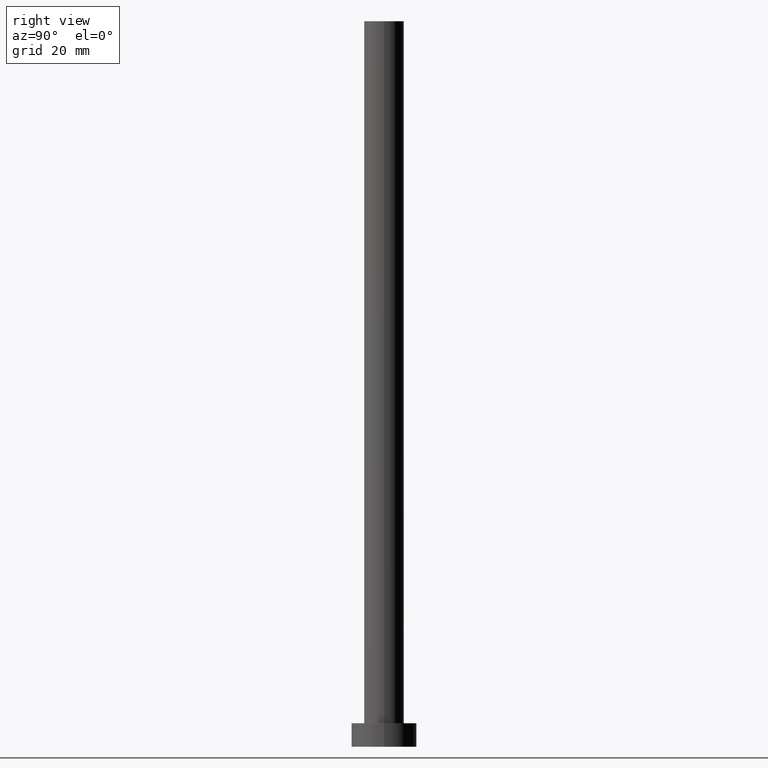
[diagram: clean part render]
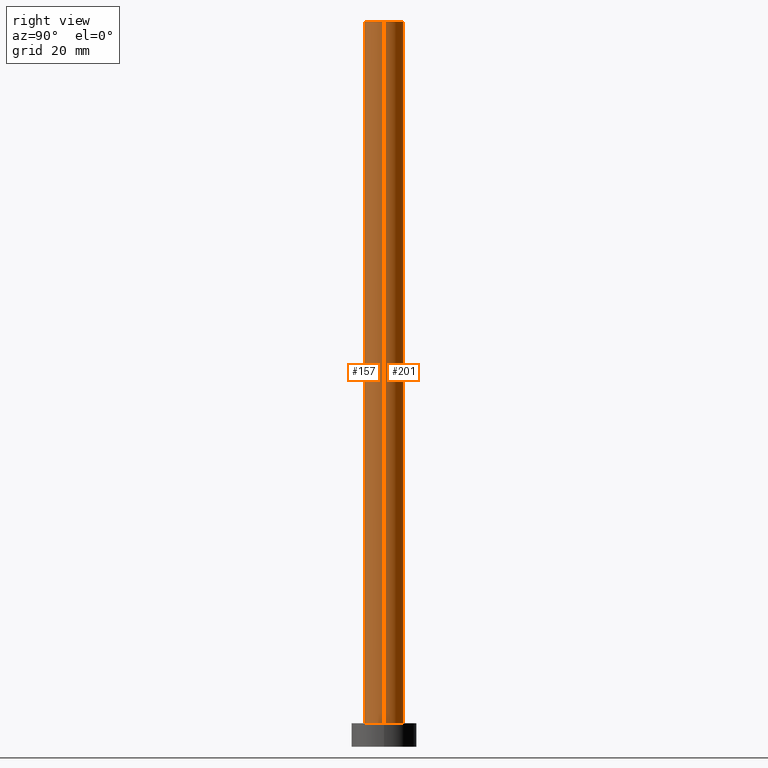
[diagram: same view with one multi-face feature highlighted, each face labeled with its STEP entity id]
A machine part, right view. The highlighted faces form ONE feature: a constant-radius fillet chain: 2 tangent blend faces with common blend radius 5.5 mm. The faces share edges in the B-rep.
Their STEP definitions:
[1] entity #201 (Cylinder):
#1 = DIRECTION ( 'NONE',  ( 0.000000000000000000, 0.000000000000000000, 1.000000000000000000 ) ) ;
#2 = DIRECTION ( 'NONE',  ( 1.000000000000000000, 0.000000000000000000, 0.000000000000000000 ) ) ;
#10 = DIRECTION ( 'NONE',  ( -0.000000000000000000, -0.000000000000000000, -1.000000000000000000 ) ) ;
#14 = ORIENTED_EDGE ( 'NONE', *, *, #218, .T. ) ;
#20 = EDGE_CURVE ( 'NONE', #165, #248, #246, .T. ) ;
#21 = CARTESIAN_POINT ( 'NONE',  ( -5.500000000000000000, 0.000000000000000000, 200.0000000000000000 ) ) ;
#35 = AXIS2_PLACEMENT_3D ( 'NONE', #120, #84, #2 ) ;
#41 = CIRCLE ( 'NONE', #211, 5.500000000000000000 ) ;
#42 = LINE ( 'NONE', #21, #215 ) ;
#44 = FACE_OUTER_BOUND ( 'NONE', #163, .T. ) ;
#61 = CARTESIAN_POINT ( 'NONE',  ( 5.500000000000000000, 6.735557395310442023E-16, 6.500000000000000000 ) ) ;
#66 = VERTEX_POINT ( 'NONE', #99 ) ;
#80 = DIRECTION ( 'NONE',  ( -0.000000000000000000, -0.000000000000000000, -1.000000000000000000 ) ) ;
#84 = DIRECTION ( 'NONE',  ( 0.000000000000000000, 0.000000000000000000, 1.000000000000000000 ) ) ;
#99 = CARTESIAN_POINT ( 'NONE',  ( -5.500000000000000000, 0.000000000000000000, 200.0000000000000000 ) ) ;
#120 = CARTESIAN_POINT ( 'NONE',  ( 0.000000000000000000, 0.000000000000000000, 200.0000000000000000 ) ) ;
#122 = CIRCLE ( 'NONE', #35, 5.500000000000000000 ) ;
#124 = ORIENTED_EDGE ( 'NONE', *, *, #212, .F. ) ;
#138 = CARTESIAN_POINT ( 'NONE',  ( 0.000000000000000000, 0.000000000000000000, 200.0000000000000000 ) ) ;
#147 = ORIENTED_EDGE ( 'NONE', *, *, #152, .F. ) ;
#152 = EDGE_CURVE ( 'NONE', #165, #66, #122, .T. ) ;
#159 = VECTOR ( 'NONE', #10, 1000.000000000000000 ) ;
#163 = EDGE_LOOP ( 'NONE', ( #147, #184, #14, #124 ) ) ;
#165 = VERTEX_POINT ( 'NONE', #214 ) ;
#173 = DIRECTION ( 'NONE',  ( -0.000000000000000000, -0.000000000000000000, -1.000000000000000000 ) ) ;
#174 = DIRECTION ( 'NONE',  ( 1.000000000000000000, 0.000000000000000000, 0.000000000000000000 ) ) ;
#184 = ORIENTED_EDGE ( 'NONE', *, *, #20, .T. ) ;
#194 = CARTESIAN_POINT ( 'NONE',  ( 0.000000000000000000, 0.000000000000000000, 6.500000000000000000 ) ) ;
#201 = ADVANCED_FACE ( 'NONE', ( #44 ), #240, .T. ) ;
#211 = AXIS2_PLACEMENT_3D ( 'NONE', #194, #1, #174 ) ;
#212 = EDGE_CURVE ( 'NONE', #66, #213, #42, .T. ) ;
#213 = VERTEX_POINT ( 'NONE', #217 ) ;
#214 = CARTESIAN_POINT ( 'NONE',  ( 5.500000000000000000, 6.735557395310442023E-16, 200.0000000000000000 ) ) ;
#215 = VECTOR ( 'NONE', #80, 1000.000000000000000 ) ;
#217 = CARTESIAN_POINT ( 'NONE',  ( -5.500000000000000000, 0.000000000000000000, 6.500000000000000000 ) ) ;
#218 = EDGE_CURVE ( 'NONE', #248, #213, #41, .T. ) ;
#224 = CARTESIAN_POINT ( 'NONE',  ( 5.500000000000000000, 6.735557395310442023E-16, 200.0000000000000000 ) ) ;
#237 = AXIS2_PLACEMENT_3D ( 'NONE', #138, #173, #254 ) ;
#240 = CYLINDRICAL_SURFACE ( 'NONE', #237, 5.500000000000000000 ) ;
#246 = LINE ( 'NONE', #224, #159 ) ;
#248 = VERTEX_POINT ( 'NONE', #61 ) ;
#254 = DIRECTION ( 'NONE',  ( -1.000000000000000000, 0.000000000000000000, 0.000000000000000000 ) ) ;
[2] entity #157 (Cylinder):
#3 = DIRECTION ( 'NONE',  ( 0.000000000000000000, 0.000000000000000000, 1.000000000000000000 ) ) ;
#10 = DIRECTION ( 'NONE',  ( -0.000000000000000000, -0.000000000000000000, -1.000000000000000000 ) ) ;
#17 = CARTESIAN_POINT ( 'NONE',  ( 0.000000000000000000, 0.000000000000000000, 200.0000000000000000 ) ) ;
#20 = EDGE_CURVE ( 'NONE', #165, #248, #246, .T. ) ;
#21 = CARTESIAN_POINT ( 'NONE',  ( -5.500000000000000000, 0.000000000000000000, 200.0000000000000000 ) ) ;
#24 = EDGE_LOOP ( 'NONE', ( #142, #62, #144, #235 ) ) ;
#42 = LINE ( 'NONE', #21, #215 ) ;
#43 = CYLINDRICAL_SURFACE ( 'NONE', #115, 5.500000000000000000 ) ;
#61 = CARTESIAN_POINT ( 'NONE',  ( 5.500000000000000000, 6.735557395310442023E-16, 6.500000000000000000 ) ) ;
#62 = ORIENTED_EDGE ( 'NONE', *, *, #132, .F. ) ;
#66 = VERTEX_POINT ( 'NONE', #99 ) ;
#80 = DIRECTION ( 'NONE',  ( -0.000000000000000000, -0.000000000000000000, -1.000000000000000000 ) ) ;
#86 = DIRECTION ( 'NONE',  ( -1.000000000000000000, 0.000000000000000000, 0.000000000000000000 ) ) ;
#99 = CARTESIAN_POINT ( 'NONE',  ( -5.500000000000000000, 0.000000000000000000, 200.0000000000000000 ) ) ;
#108 = DIRECTION ( 'NONE',  ( 0.000000000000000000, 0.000000000000000000, 1.000000000000000000 ) ) ;
#115 = AXIS2_PLACEMENT_3D ( 'NONE', #158, #155, #86 ) ;
#117 = CIRCLE ( 'NONE', #145, 5.500000000000000000 ) ;
#127 = CIRCLE ( 'NONE', #153, 5.500000000000000000 ) ;
#132 = EDGE_CURVE ( 'NONE', #66, #165, #117, .T. ) ;
#135 = DIRECTION ( 'NONE',  ( 1.000000000000000000, 0.000000000000000000, 0.000000000000000000 ) ) ;
#142 = ORIENTED_EDGE ( 'NONE', *, *, #20, .F. ) ;
#144 = ORIENTED_EDGE ( 'NONE', *, *, #212, .T. ) ;
#145 = AXIS2_PLACEMENT_3D ( 'NONE', #17, #3, #135 ) ;
#153 = AXIS2_PLACEMENT_3D ( 'NONE', #154, #108, #193 ) ;
#154 = CARTESIAN_POINT ( 'NONE',  ( 0.000000000000000000, 0.000000000000000000, 6.500000000000000000 ) ) ;
#155 = DIRECTION ( 'NONE',  ( -0.000000000000000000, -0.000000000000000000, -1.000000000000000000 ) ) ;
#157 = ADVANCED_FACE ( 'NONE', ( #239 ), #43, .T. ) ;
#158 = CARTESIAN_POINT ( 'NONE',  ( 0.000000000000000000, 0.000000000000000000, 200.0000000000000000 ) ) ;
#159 = VECTOR ( 'NONE', #10, 1000.000000000000000 ) ;
#165 = VERTEX_POINT ( 'NONE', #214 ) ;
#193 = DIRECTION ( 'NONE',  ( 1.000000000000000000, 0.000000000000000000, 0.000000000000000000 ) ) ;
#212 = EDGE_CURVE ( 'NONE', #66, #213, #42, .T. ) ;
#213 = VERTEX_POINT ( 'NONE', #217 ) ;
#214 = CARTESIAN_POINT ( 'NONE',  ( 5.500000000000000000, 6.735557395310442023E-16, 200.0000000000000000 ) ) ;
#215 = VECTOR ( 'NONE', #80, 1000.000000000000000 ) ;
#217 = CARTESIAN_POINT ( 'NONE',  ( -5.500000000000000000, 0.000000000000000000, 6.500000000000000000 ) ) ;
#224 = CARTESIAN_POINT ( 'NONE',  ( 5.500000000000000000, 6.735557395310442023E-16, 200.0000000000000000 ) ) ;
#235 = ORIENTED_EDGE ( 'NONE', *, *, #238, .T. ) ;
#238 = EDGE_CURVE ( 'NONE', #213, #248, #127, .T. ) ;
#239 = FACE_OUTER_BOUND ( 'NONE', #24, .T. ) ;
#246 = LINE ( 'NONE', #224, #159 ) ;
#248 = VERTEX_POINT ( 'NONE', #61 ) ;